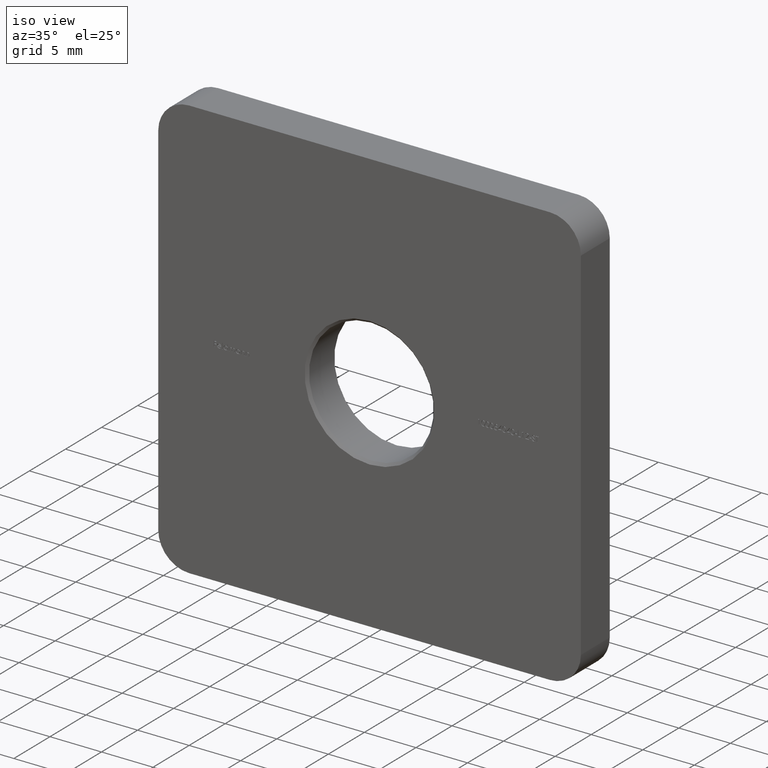
[diagram: clean part render]
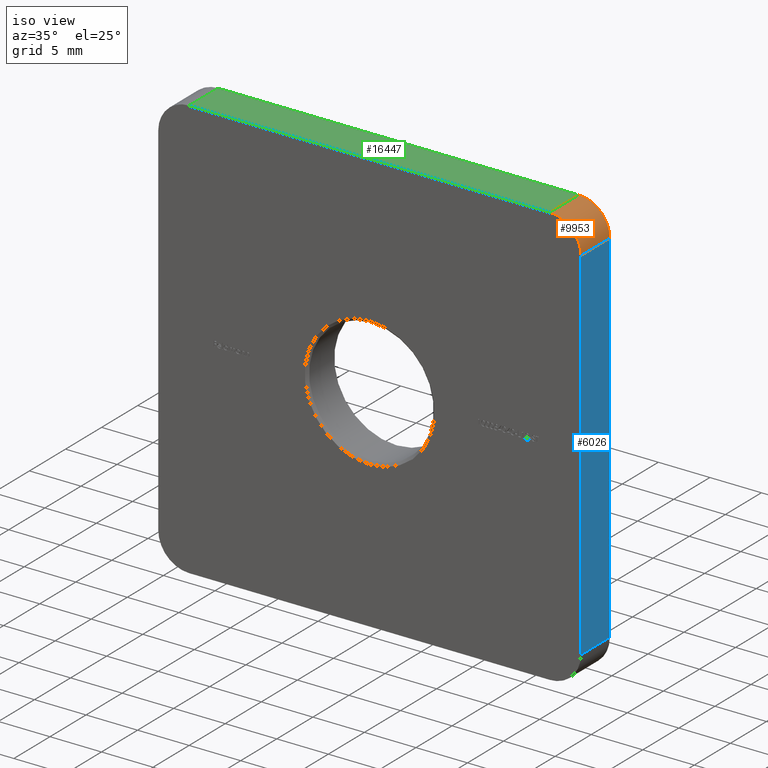
[diagram: same view with three faces highlighted in distinct colors, each labeled with its STEP entity id]
A machine part, iso view with three faces highlighted in distinct colors.
Their STEP definitions:

[orange] entity #9953 — the highlighted cylindrical surface (partial cylindrical patch) has radius 3 mm, axis along (0, -1, 0).
#230 = DIRECTION ( 'NONE',  ( -0.000000000000000000, 1.000000000000000000, -0.000000000000000000 ) ) ;
#773 = DIRECTION ( 'NONE',  ( -0.000000000000000000, -1.000000000000000000, -0.000000000000000000 ) ) ;
#1013 = EDGE_CURVE ( 'NONE', #1300, #10598, #13757, .T. ) ;
#1300 = VERTEX_POINT ( 'NONE', #13018 ) ;
#1519 = CYLINDRICAL_SURFACE ( 'NONE', #2273, 2.999999999999999112 ) ;
#2273 = AXIS2_PLACEMENT_3D ( 'NONE', #11363, #7409, #3591 ) ;
#2428 = VERTEX_POINT ( 'NONE', #13380 ) ;
#3591 = DIRECTION ( 'NONE',  ( 0.000000000000000000, 0.000000000000000000, -1.000000000000000000 ) ) ;
#4876 = CARTESIAN_POINT ( 'NONE',  ( 17.50000000000000711, 0.000000000000000000, 20.50000000000000355 ) ) ;
#5199 = CARTESIAN_POINT ( 'NONE',  ( 17.50000000000000711, 4.000000000000000000, 20.50000000000000355 ) ) ;
#5701 = VERTEX_POINT ( 'NONE', #11159 ) ;
#5896 = CARTESIAN_POINT ( 'NONE',  ( 17.50000000000000355, 0.000000000000000000, 17.50000000000000711 ) ) ;
#6161 = DIRECTION ( 'NONE',  ( 0.000000000000000000, 1.000000000000000000, 0.000000000000000000 ) ) ;
#6514 = FACE_OUTER_BOUND ( 'NONE', #16393, .T. ) ;
#6868 = AXIS2_PLACEMENT_3D ( 'NONE', #8691, #6161, #9881 ) ;
#7106 = CARTESIAN_POINT ( 'NONE',  ( 20.50000000000000355, 4.000000000000000000, 17.50000000000000711 ) ) ;
#7409 = DIRECTION ( 'NONE',  ( 0.000000000000000000, -1.000000000000000000, 0.000000000000000000 ) ) ;
#7896 = ORIENTED_EDGE ( 'NONE', *, *, #11911, .F. ) ;
#8089 = VECTOR ( 'NONE', #10939, 1000.000000000000000 ) ;
#8691 = CARTESIAN_POINT ( 'NONE',  ( 17.50000000000000355, 4.000000000000000000, 17.50000000000000711 ) ) ;
#9013 = ORIENTED_EDGE ( 'NONE', *, *, #10569, .F. ) ;
#9843 = EDGE_CURVE ( 'NONE', #10598, #5701, #9891, .T. ) ;
#9881 = DIRECTION ( 'NONE',  ( 0.000000000000000000, 0.000000000000000000, 1.000000000000000000 ) ) ;
#9891 = LINE ( 'NONE', #5199, #15438 ) ;
#9953 = ADVANCED_FACE ( 'NONE', ( #6514 ), #1519, .T. ) ;
#10569 = EDGE_CURVE ( 'NONE', #5701, #2428, #15277, .T. ) ;
#10598 = VERTEX_POINT ( 'NONE', #4876 ) ;
#10939 = DIRECTION ( 'NONE',  ( 0.000000000000000000, -1.000000000000000000, 0.000000000000000000 ) ) ;
#11159 = CARTESIAN_POINT ( 'NONE',  ( 17.50000000000000711, 4.000000000000000000, 20.50000000000000355 ) ) ;
#11363 = CARTESIAN_POINT ( 'NONE',  ( 17.50000000000000355, 4.000000000000000000, 17.50000000000000711 ) ) ;
#11405 = ORIENTED_EDGE ( 'NONE', *, *, #9843, .F. ) ;
#11911 = EDGE_CURVE ( 'NONE', #2428, #1300, #14856, .T. ) ;
#13018 = CARTESIAN_POINT ( 'NONE',  ( 20.50000000000000355, 0.000000000000000000, 17.50000000000000711 ) ) ;
#13380 = CARTESIAN_POINT ( 'NONE',  ( 20.50000000000000355, 4.000000000000000000, 17.50000000000000711 ) ) ;
#13496 = DIRECTION ( 'NONE',  ( -3.469446951953615372E-15, 0.000000000000000000, 1.000000000000000000 ) ) ;
#13757 = CIRCLE ( 'NONE', #13931, 2.999999999999999112 ) ;
#13848 = ORIENTED_EDGE ( 'NONE', *, *, #1013, .F. ) ;
#13931 = AXIS2_PLACEMENT_3D ( 'NONE', #5896, #773, #13496 ) ;
#14856 = LINE ( 'NONE', #7106, #8089 ) ;
#15277 = CIRCLE ( 'NONE', #6868, 2.999999999999999112 ) ;
#15438 = VECTOR ( 'NONE', #230, 1000.000000000000000 ) ;
#16393 = EDGE_LOOP ( 'NONE', ( #9013, #11405, #13848, #7896 ) ) ;

[blue] entity #6026 — the highlighted planar face has unit normal (-1, 0, 0).
#642 = DIRECTION ( 'NONE',  ( -1.000000000000000000, 0.000000000000000000, 1.692413147294445970E-16 ) ) ;
#758 = CARTESIAN_POINT ( 'NONE',  ( 20.49999999999999645, 0.000000000000000000, -20.49999999999999645 ) ) ;
#1300 = VERTEX_POINT ( 'NONE', #13018 ) ;
#1484 = VECTOR ( 'NONE', #16046, 1000.000000000000000 ) ;
#1872 = LINE ( 'NONE', #758, #1484 ) ;
#1961 = FACE_OUTER_BOUND ( 'NONE', #10824, .T. ) ;
#2428 = VERTEX_POINT ( 'NONE', #13380 ) ;
#4346 = VERTEX_POINT ( 'NONE', #16108 ) ;
#4762 = CARTESIAN_POINT ( 'NONE',  ( 20.49999999999999645, 4.000000000000000000, -17.49999999999999645 ) ) ;
#4828 = AXIS2_PLACEMENT_3D ( 'NONE', #8191, #642, #11965 ) ;
#5837 = CARTESIAN_POINT ( 'NONE',  ( 20.49999999999999645, 4.000000000000000000, -20.49999999999999645 ) ) ;
#6026 = ADVANCED_FACE ( 'NONE', ( #1961 ), #9547, .F. ) ;
#6069 = ORIENTED_EDGE ( 'NONE', *, *, #11956, .F. ) ;
#6096 = VECTOR ( 'NONE', #16318, 1000.000000000000000 ) ;
#7106 = CARTESIAN_POINT ( 'NONE',  ( 20.50000000000000355, 4.000000000000000000, 17.50000000000000711 ) ) ;
#7144 = ORIENTED_EDGE ( 'NONE', *, *, #13836, .T. ) ;
#8089 = VECTOR ( 'NONE', #10939, 1000.000000000000000 ) ;
#8105 = ORIENTED_EDGE ( 'NONE', *, *, #12648, .T. ) ;
#8191 = CARTESIAN_POINT ( 'NONE',  ( 20.49999999999999645, 4.000000000000000000, -20.49999999999999645 ) ) ;
#9547 = PLANE ( 'NONE',  #4828 ) ;
#10824 = EDGE_LOOP ( 'NONE', ( #7144, #8105, #6069, #11108 ) ) ;
#10939 = DIRECTION ( 'NONE',  ( 0.000000000000000000, -1.000000000000000000, 0.000000000000000000 ) ) ;
#11038 = DIRECTION ( 'NONE',  ( -1.692413147294445970E-16, -0.000000000000000000, -1.000000000000000000 ) ) ;
#11108 = ORIENTED_EDGE ( 'NONE', *, *, #11911, .T. ) ;
#11911 = EDGE_CURVE ( 'NONE', #2428, #1300, #14856, .T. ) ;
#11956 = EDGE_CURVE ( 'NONE', #2428, #14629, #14057, .T. ) ;
#11965 = DIRECTION ( 'NONE',  ( 1.692413147294445970E-16, 0.000000000000000000, 1.000000000000000000 ) ) ;
#12648 = EDGE_CURVE ( 'NONE', #4346, #14629, #15228, .T. ) ;
#12849 = VECTOR ( 'NONE', #11038, 1000.000000000000000 ) ;
#13018 = CARTESIAN_POINT ( 'NONE',  ( 20.50000000000000355, 0.000000000000000000, 17.50000000000000711 ) ) ;
#13380 = CARTESIAN_POINT ( 'NONE',  ( 20.50000000000000355, 4.000000000000000000, 17.50000000000000711 ) ) ;
#13836 = EDGE_CURVE ( 'NONE', #1300, #4346, #1872, .T. ) ;
#14057 = LINE ( 'NONE', #5837, #12849 ) ;
#14629 = VERTEX_POINT ( 'NONE', #14640 ) ;
#14640 = CARTESIAN_POINT ( 'NONE',  ( 20.49999999999999645, 4.000000000000000000, -17.49999999999999645 ) ) ;
#14856 = LINE ( 'NONE', #7106, #8089 ) ;
#15228 = LINE ( 'NONE', #4762, #6096 ) ;
#16046 = DIRECTION ( 'NONE',  ( -1.692413147294445970E-16, -0.000000000000000000, -1.000000000000000000 ) ) ;
#16108 = CARTESIAN_POINT ( 'NONE',  ( 20.49999999999999645, 0.000000000000000000, -17.49999999999999645 ) ) ;
#16318 = DIRECTION ( 'NONE',  ( -0.000000000000000000, 1.000000000000000000, -0.000000000000000000 ) ) ;

[green] entity #16447 — the highlighted planar face has unit normal (0, 0, -1).
#230 = DIRECTION ( 'NONE',  ( -0.000000000000000000, 1.000000000000000000, -0.000000000000000000 ) ) ;
#526 = VERTEX_POINT ( 'NONE', #8702 ) ;
#629 = LINE ( 'NONE', #5422, #13743 ) ;
#1212 = CARTESIAN_POINT ( 'NONE',  ( -17.49999999999999645, 0.000000000000000000, 20.50000000000000355 ) ) ;
#3008 = EDGE_CURVE ( 'NONE', #526, #5701, #629, .T. ) ;
#3110 = VECTOR ( 'NONE', #6144, 1000.000000000000000 ) ;
#3220 = LINE ( 'NONE', #15603, #13927 ) ;
#3825 = FACE_OUTER_BOUND ( 'NONE', #5358, .T. ) ;
#3967 = EDGE_CURVE ( 'NONE', #10215, #10598, #3220, .T. ) ;
#4100 = ORIENTED_EDGE ( 'NONE', *, *, #8534, .T. ) ;
#4322 = LINE ( 'NONE', #4702, #3110 ) ;
#4702 = CARTESIAN_POINT ( 'NONE',  ( -17.49999999999999645, 4.000000000000000000, 20.50000000000000355 ) ) ;
#4876 = CARTESIAN_POINT ( 'NONE',  ( 17.50000000000000711, 0.000000000000000000, 20.50000000000000355 ) ) ;
#5199 = CARTESIAN_POINT ( 'NONE',  ( 17.50000000000000711, 4.000000000000000000, 20.50000000000000355 ) ) ;
#5356 = DIRECTION ( 'NONE',  ( 1.000000000000000000, 0.000000000000000000, 0.000000000000000000 ) ) ;
#5358 = EDGE_LOOP ( 'NONE', ( #8999, #4100, #7478, #15243 ) ) ;
#5422 = CARTESIAN_POINT ( 'NONE',  ( -20.49999999999999645, 4.000000000000000000, 20.50000000000000355 ) ) ;
#5701 = VERTEX_POINT ( 'NONE', #11159 ) ;
#5746 = DIRECTION ( 'NONE',  ( 0.000000000000000000, 0.000000000000000000, -1.000000000000000000 ) ) ;
#6144 = DIRECTION ( 'NONE',  ( 0.000000000000000000, -1.000000000000000000, 0.000000000000000000 ) ) ;
#7478 = ORIENTED_EDGE ( 'NONE', *, *, #3967, .T. ) ;
#8204 = DIRECTION ( 'NONE',  ( -1.000000000000000000, 0.000000000000000000, -0.000000000000000000 ) ) ;
#8229 = DIRECTION ( 'NONE',  ( 1.000000000000000000, 0.000000000000000000, 0.000000000000000000 ) ) ;
#8534 = EDGE_CURVE ( 'NONE', #526, #10215, #4322, .T. ) ;
#8702 = CARTESIAN_POINT ( 'NONE',  ( -17.49999999999999645, 4.000000000000000000, 20.50000000000000355 ) ) ;
#8999 = ORIENTED_EDGE ( 'NONE', *, *, #3008, .F. ) ;
#9843 = EDGE_CURVE ( 'NONE', #10598, #5701, #9891, .T. ) ;
#9891 = LINE ( 'NONE', #5199, #15438 ) ;
#10215 = VERTEX_POINT ( 'NONE', #1212 ) ;
#10598 = VERTEX_POINT ( 'NONE', #4876 ) ;
#11159 = CARTESIAN_POINT ( 'NONE',  ( 17.50000000000000711, 4.000000000000000000, 20.50000000000000355 ) ) ;
#13743 = VECTOR ( 'NONE', #8229, 1000.000000000000000 ) ;
#13927 = VECTOR ( 'NONE', #5356, 1000.000000000000000 ) ;
#14549 = CARTESIAN_POINT ( 'NONE',  ( -20.49999999999999645, 4.000000000000000000, 20.50000000000000355 ) ) ;
#14568 = AXIS2_PLACEMENT_3D ( 'NONE', #14549, #5746, #8204 ) ;
#15243 = ORIENTED_EDGE ( 'NONE', *, *, #9843, .T. ) ;
#15438 = VECTOR ( 'NONE', #230, 1000.000000000000000 ) ;
#15603 = CARTESIAN_POINT ( 'NONE',  ( -20.49999999999999645, 0.000000000000000000, 20.50000000000000355 ) ) ;
#15832 = PLANE ( 'NONE',  #14568 ) ;
#16447 = ADVANCED_FACE ( 'NONE', ( #3825 ), #15832, .F. ) ;